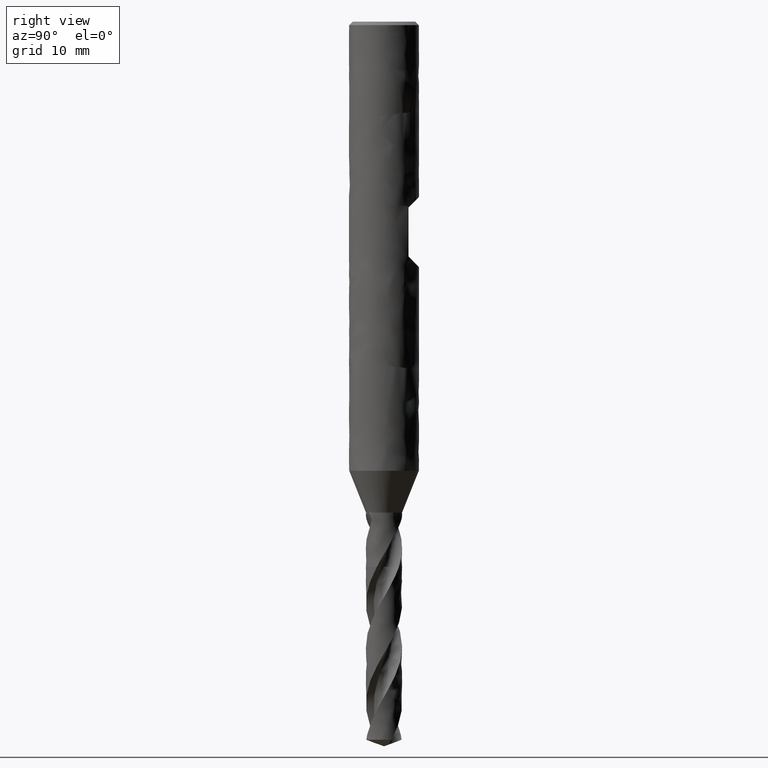
[diagram: clean part render]
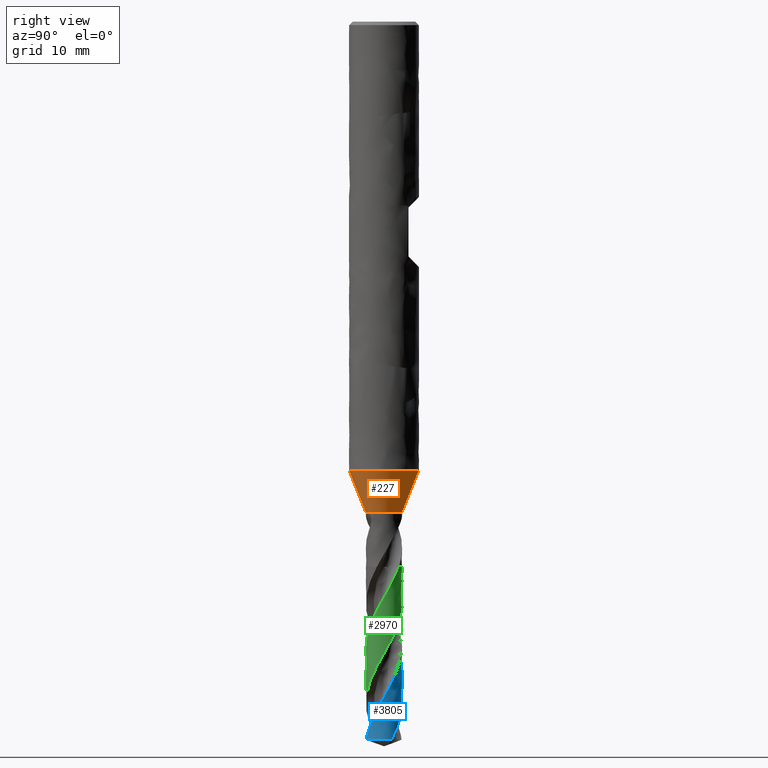
[diagram: same view with three faces highlighted in distinct colors, each labeled with its STEP entity id]
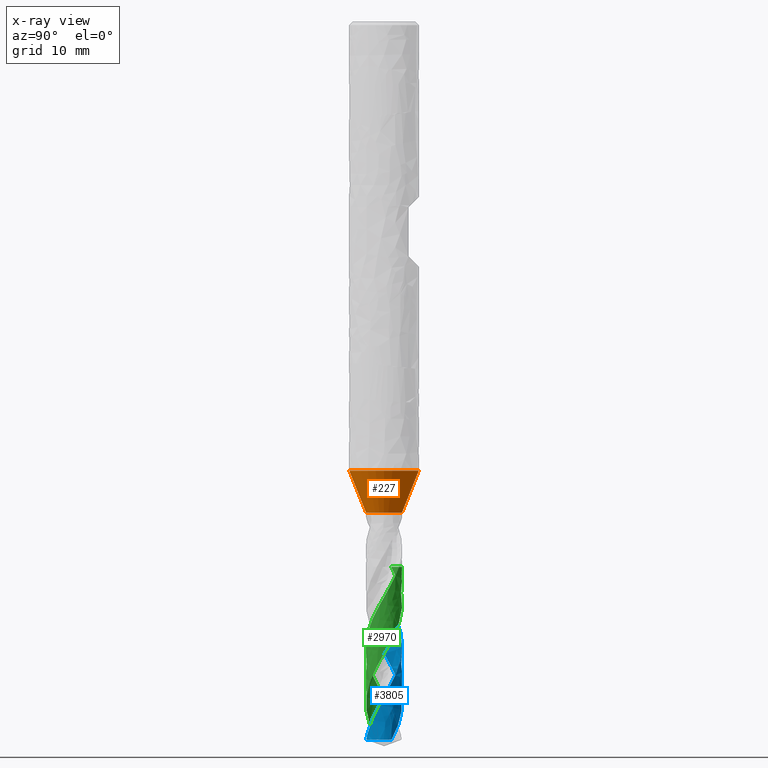
[diagram: x-ray of the same camera — body ghosted, the three highlighted faces saturated]
A machine part, right view with three faces highlighted in distinct colors.
The next image is the same camera in x-ray (body ghosted, the three faces saturated) — at least one of them is partly hidden behind the body in this view.
Their STEP definitions:

[orange] entity #227 — the highlighted face is a freeform B-spline surface patch.
#75 = VERTEX_POINT('', #76);
#76 = CARTESIAN_POINT('', (0.627881422364549, -1.4171326400339, -42.));
#122 = EDGE_CURVE('', #75, #123, #125, .T.);
#123 = VERTEX_POINT('', #124);
#124 = CARTESIAN_POINT('', (-1.55, 2.66666840514336E-15, -42.));
#125 = CIRCLE('', #126, 1.55);
#126 = AXIS2_PLACEMENT_3D('', #127, #128, #129);
#127 = CARTESIAN_POINT('', (1.57474777179495E-31, 2.57175827820944E-15, -42.));
#128 = DIRECTION('', (3.74939945665464E-33, 6.12323399573677E-17, -1.));
#129 = DIRECTION('', (-1., 6.12323399573677E-17, 0.));
#227 = ADVANCED_FACE('', (#228), #339, .T.);
#228 = FACE_OUTER_BOUND('', #229, .T.);
#229 = EDGE_LOOP('', (#230, #247, #256, #271, #279, #294, #301, #309, #316, #317, #318, #333));
#230 = ORIENTED_EDGE('', *, *, #231, .T.);
#231 = EDGE_CURVE('', #232, #234, #236, .T.);
#232 = VERTEX_POINT('', #233);
#233 = CARTESIAN_POINT('', (0.744864500153045, -1.36851492199996, -41.98));
#234 = VERTEX_POINT('', #235);
#235 = CARTESIAN_POINT('', (0.828880409114039, -1.30975465923467, -42.));
#236 = B_SPLINE_CURVE_WITH_KNOTS('', 3, (#237, #238, #239, #240, #241, #242, #243, #244, #245, #246), .UNSPECIFIED., .F., .U., (4, 3, 3, 4), (0., 0.0588161059476675, 0.0977925792782247, 0.105234249417953), .UNSPECIFIED.);
#237 = CARTESIAN_POINT('', (0.744864500154259, -1.3685149219993, -41.98));
#238 = CARTESIAN_POINT('', (0.762076776032858, -1.35912841588972, -41.9800392683816));
#239 = CARTESIAN_POINT('', (0.778913272798681, -1.34869301233412, -41.9818579269681));
#240 = CARTESIAN_POINT('', (0.794493674618662, -1.33751548720997, -41.9859425923275));
#241 = CARTESIAN_POINT('', (0.804818552579066, -1.33010832376581, -41.9886494333855));
#242 = CARTESIAN_POINT('', (0.814679514851356, -1.32231347696265, -41.9923765779626));
#243 = CARTESIAN_POINT('', (0.823760362191451, -1.31434203251164, -41.9971505122571));
#244 = CARTESIAN_POINT('', (0.825494143232161, -1.31282006669296, -41.9980619863145));
#245 = CARTESIAN_POINT('', (0.827201512917607, -1.31129033241339, -41.9990119832707));
#246 = CARTESIAN_POINT('', (0.828880409114055, -1.30975465923468, -42.));
#247 = ORIENTED_EDGE('', *, *, #248, .F.);
#248 = EDGE_CURVE('', #249, #234, #251, .T.);
#249 = VERTEX_POINT('', #250);
#250 = CARTESIAN_POINT('', (-0.627881422364551, 1.41713264003391, -42.));
#251 = CIRCLE('', #252, 1.55);
#252 = AXIS2_PLACEMENT_3D('', #253, #254, #255);
#253 = CARTESIAN_POINT('', (1.57474777179495E-31, 2.57175827820944E-15, -42.));
#254 = DIRECTION('', (3.74939945665464E-33, 6.12323399573677E-17, -1.));
#255 = DIRECTION('', (-1., 6.12323399573677E-17, 0.));
#256 = ORIENTED_EDGE('', *, *, #257, .F.);
#257 = EDGE_CURVE('', #258, #249, #260, .T.);
#258 = VERTEX_POINT('', #259);
#259 = CARTESIAN_POINT('', (-0.743704507682094, 1.36914565352929, -41.98));
#260 = B_SPLINE_CURVE_WITH_KNOTS('', 3, (#261, #262, #263, #264, #265, #266, #267, #268, #269, #270), .UNSPECIFIED., .F., .U., (4, 3, 3, 4), (0., 0.0585774960579021, 0.116854257670078, 0.12744462407822), .UNSPECIFIED.);
#261 = CARTESIAN_POINT('', (-0.743704507676167, 1.36914565353251, -41.98));
#262 = CARTESIAN_POINT('', (-0.726539052094086, 1.37845176594328, -41.9800390192735));
#263 = CARTESIAN_POINT('', (-0.708816172334189, 1.38684246911605, -41.9818041005853));
#264 = CARTESIAN_POINT('', (-0.691023940150775, 1.39430501473745, -41.9848049342738));
#265 = CARTESIAN_POINT('', (-0.673323052552636, 1.40172924795781, -41.987790361806));
#266 = CARTESIAN_POINT('', (-0.655431397703463, 1.40829151745052, -41.992014639284));
#267 = CARTESIAN_POINT('', (-0.637600839859803, 1.41406249322282, -41.997125459555));
#268 = CARTESIAN_POINT('', (-0.634360575033789, 1.41511122596415, -41.9980542252897));
#269 = CARTESIAN_POINT('', (-0.631120424241969, 1.41613444507661, -41.9990129660792));
#270 = CARTESIAN_POINT('', (-0.627881422364559, 1.4171326400339, -42.));
#271 = ORIENTED_EDGE('', *, *, #272, .F.);
#272 = EDGE_CURVE('', #273, #258, #275, .T.);
#273 = VERTEX_POINT('', #274);
#274 = CARTESIAN_POINT('', (-0.744864500151864, 1.36851492200061, -41.98));
#275 = LINE('', #276, #277);
#276 = CARTESIAN_POINT('', (-0.744864500151864, 1.36851492200061, -41.98));
#277 = VECTOR('', #278, 0.00132038054787247);
#278 = DIRECTION('', (0.00115999246977061, 0.000630731528683537, 0.));
#279 = ORIENTED_EDGE('', *, *, #280, .T.);
#280 = EDGE_CURVE('', #273, #281, #283, .T.);
#281 = VERTEX_POINT('', #282);
#282 = CARTESIAN_POINT('', (-0.828880409114053, 1.30975465923467, -42.));
#283 = B_SPLINE_CURVE_WITH_KNOTS('', 3, (#284, #285, #286, #287, #288, #289, #290, #291, #292, #293), .UNSPECIFIED., .F., .U., (4, 3, 3, 4), (0., 0.0588161059476683, 0.0977925792782241, 0.105234249417383), .UNSPECIFIED.);
#284 = CARTESIAN_POINT('', (-0.744864500154759, 1.36851492199903, -41.98));
#285 = CARTESIAN_POINT('', (-0.762076776033349, 1.35912841588944, -41.9800392683816));
#286 = CARTESIAN_POINT('', (-0.778913272799156, 1.34869301233382, -41.9818579269681));
#287 = CARTESIAN_POINT('', (-0.794493674619115, 1.33751548720965, -41.9859425923276));
#288 = CARTESIAN_POINT('', (-0.804818552579504, 1.33010832376548, -41.9886494333856));
#289 = CARTESIAN_POINT('', (-0.814679514851774, 1.32231347696231, -41.9923765779628));
#290 = CARTESIAN_POINT('', (-0.823760362191848, 1.31434203251129, -41.9971505122573));
#291 = CARTESIAN_POINT('', (-0.82549414323242, 1.31282006669273, -41.9980619863147));
#292 = CARTESIAN_POINT('', (-0.827201512917736, 1.31129033241328, -41.9990119832708));
#293 = CARTESIAN_POINT('', (-0.828880409114055, 1.30975465923468, -42.));
#294 = ORIENTED_EDGE('', *, *, #295, .F.);
#295 = EDGE_CURVE('', #123, #281, #296, .T.);
#296 = CIRCLE('', #297, 1.55);
#297 = AXIS2_PLACEMENT_3D('', #298, #299, #300);
#298 = CARTESIAN_POINT('', (1.57474777179495E-31, 2.57175827820944E-15, -42.));
#299 = DIRECTION('', (3.74939945665464E-33, 6.12323399573677E-17, -1.));
#300 = DIRECTION('', (-1., 6.12323399573677E-17, 0.));
#301 = ORIENTED_EDGE('', *, *, #302, .F.);
#302 = EDGE_CURVE('', #303, #123, #305, .T.);
#303 = VERTEX_POINT('', #304);
#304 = CARTESIAN_POINT('', (-3., 2.5360598240143E-15, -38.417));
#305 = LINE('', #306, #307);
#306 = CARTESIAN_POINT('', (-3., 2.5360598240143E-15, -38.417));
#307 = VECTOR('', #308, 3.86527993811574);
#308 = DIRECTION('', (1.45, 1.30608581129065E-16, -3.583));
#309 = ORIENTED_EDGE('', *, *, #310, .T.);
#310 = EDGE_CURVE('', #303, #303, #311, .T.);
#311 = CIRCLE('', #312, 3.);
#312 = AXIS2_PLACEMENT_3D('', #313, #314, #315);
#313 = CARTESIAN_POINT('', (1.44040678926301E-31, 2.35236280414219E-15, -38.417));
#314 = DIRECTION('', (3.74939945665464E-33, 6.12323399573677E-17, -1.));
#315 = DIRECTION('', (-1., 6.12323399573677E-17, 0.));
#316 = ORIENTED_EDGE('', *, *, #302, .T.);
#317 = ORIENTED_EDGE('', *, *, #122, .F.);
#318 = ORIENTED_EDGE('', *, *, #319, .F.);
#319 = EDGE_CURVE('', #320, #75, #322, .T.);
#320 = VERTEX_POINT('', #321);
#321 = CARTESIAN_POINT('', (0.743704507680911, -1.36914565352993, -41.98));
#322 = B_SPLINE_CURVE_WITH_KNOTS('', 3, (#323, #324, #325, #326, #327, #328, #329, #330, #331, #332), .UNSPECIFIED., .F., .U., (4, 3, 3, 4), (0., 0.0585774960579116, 0.116854257670093, 0.127444624079631), .UNSPECIFIED.);
#323 = CARTESIAN_POINT('', (0.743704507677403, -1.36914565353184, -41.98));
#324 = CARTESIAN_POINT('', (0.726539052095343, -1.37845176594265, -41.9800390192735));
#325 = CARTESIAN_POINT('', (0.708816172335457, -1.38684246911546, -41.9818041005852));
#326 = CARTESIAN_POINT('', (0.691023940152047, -1.39430501473691, -41.9848049342736));
#327 = CARTESIAN_POINT('', (0.673323052553914, -1.40172924795732, -41.9877903618058));
#328 = CARTESIAN_POINT('', (0.655431397704741, -1.40829151745007, -41.9920146392837));
#329 = CARTESIAN_POINT('', (0.637600839861079, -1.4140624932224, -41.9971254595546));
#330 = CARTESIAN_POINT('', (0.634360575034638, -1.41511122596387, -41.9980542252894));
#331 = CARTESIAN_POINT('', (0.631120424242391, -1.41613444507647, -41.9990129660791));
#332 = CARTESIAN_POINT('', (0.627881422364553, -1.4171326400339, -42.));
#333 = ORIENTED_EDGE('', *, *, #334, .F.);
#334 = EDGE_CURVE('', #232, #320, #335, .T.);
#335 = LINE('', #336, #337);
#336 = CARTESIAN_POINT('', (0.744864500153045, -1.36851492199996, -41.98));
#337 = VECTOR('', #338, 0.00132038055056203);
#338 = DIRECTION('', (-0.00115999247213361, -0.000630731529968065, 0.));
#339 = (
   BOUNDED_SURFACE ()
   B_SPLINE_SURFACE (2, 1, ((#340, #341), (#342, #343), (#344, #345), (#346, #347), (#348, #349), (#350, #351), (#352, #353), (#354, #355), (#356, #357)), .UNSPECIFIED., .T., .F., .U.)
   B_SPLINE_SURFACE_WITH_KNOTS ((3, 2, 2, 2, 3), (2, 2), (0., 0.25, 0.5, 0.75, 1.), (0., 1.), .UNSPECIFIED.)
   GEOMETRIC_REPRESENTATION_ITEM ()
   RATIONAL_B_SPLINE_SURFACE (((1., 1.), (0.707106781186548, 0.707106781186548), (1., 1.), (0.707106781186548, 0.707106781186548), (1., 1.), (0.707106781186548, 0.707106781186548), (1., 1.), (0.707106781186548, 0.707106781186548), (1., 1.)))
   REPRESENTATION_ITEM ('')
   SURFACE ()
);
#340 = CARTESIAN_POINT('', (-3., 2.5360598240143E-15, -38.417));
#341 = CARTESIAN_POINT('', (-1.55, 2.66666840514336E-15, -42.));
#342 = CARTESIAN_POINT('', (-3., 3., -38.417));
#343 = CARTESIAN_POINT('', (-1.55, 1.55, -42.));
#344 = CARTESIAN_POINT('', (1.23259516440783E-31, 3., -38.417));
#345 = CARTESIAN_POINT('', (1.60237371373018E-31, 1.55, -42.));
#346 = CARTESIAN_POINT('', (3., 3., -38.417));
#347 = CARTESIAN_POINT('', (1.55, 1.55, -42.));
#348 = CARTESIAN_POINT('', (3., 2.5360598240143E-15, -38.417));
#349 = CARTESIAN_POINT('', (1.55, 2.66666840514336E-15, -42.));
#350 = CARTESIAN_POINT('', (3., -3., -38.417));
#351 = CARTESIAN_POINT('', (1.55, -1.55, -42.));
#352 = CARTESIAN_POINT('', (3.67394039744206E-16, -3., -38.417));
#353 = CARTESIAN_POINT('', (1.8982025386784E-16, -1.55, -42.));
#354 = CARTESIAN_POINT('', (-3., -3., -38.417));
#355 = CARTESIAN_POINT('', (-1.55, -1.55, -42.));
#356 = CARTESIAN_POINT('', (-3., 2.5360598240143E-15, -38.417));
#357 = CARTESIAN_POINT('', (-1.55, 2.66666840514336E-15, -42.));

[blue] entity #3805 — the highlighted face is a freeform B-spline surface patch.
#1717 = VERTEX_POINT('', #1718);
#1718 = CARTESIAN_POINT('', (-1.55, 3.40472256025025E-15, -54.0533390626709));
#1815 = EDGE_CURVE('', #1816, #1717, #1818, .T.);
#1816 = VERTEX_POINT('', #1817);
#1817 = CARTESIAN_POINT('', (1.40988378344483, 0.64399356920647, -61.4358461368874));
#1818 = B_SPLINE_CURVE_WITH_KNOTS('', 3, (#1819, #1820, #1821, #1822, #1823, #1824, #1825, #1826, #1827, #1828, #1829, #1830, #1831, #1832, #1833, #1834, #1835, #1836, #1837, #1838, #1839, #1840, #1841, #1842, #1843, #1844, #1845, #1846, #1847, #1848, #1849, #1850, #1851, #1852, #1853, #1854, #1855, #1856, #1857, #1858, #1859, #1860, #1861, #1862, #1863, #1864, #1865, #1866, #1867, #1868, #1869, #1870, #1871, #1872, #1873, #1874, #1875, #1876, #1877, #1878, #1879, #1880, #1881, #1882, #1883, #1884, #1885, #1886, #1887, #1888, #1889, #1890, #1891, #1892, #1893, #1894, #1895, #1896, #1897), .UNSPECIFIED., .F., .U., (4, 3, 3, 3, 3, 3, 3, 3, 3, 3, 3, 3, 3, 3, 3, 3, 3, 3, 3, 3, 3, 3, 3, 3, 3, 3, 4), (0., 0.443883191921883, 0.887488298293039, 1.33082201933787, 1.77388854042719, 2.2166886423635, 2.65922085424135, 3.10148120019066, 3.54346219964249, 3.58237400413385, 4.02718235987525, 4.32328315081376, 4.6192936692098, 4.91521664398712, 5.21105428992274, 5.50680836556291, 5.80248024939906, 6.09807093073575, 6.39358102150499, 6.68901076627358, 6.98436004553766, 7.27962837249952, 7.57481488327345, 7.86991832021399, 8.16493700882357, 8.45986885785098, 8.49503709151371), .UNSPECIFIED.);
#1819 = CARTESIAN_POINT('', (1.40988378344484, 0.643993569206449, -61.4358461368874));
#1820 = CARTESIAN_POINT('', (1.37951572487496, 0.710477825198545, -61.3071989403529));
#1821 = CARTESIAN_POINT('', (1.3444118649723, 0.774855685119166, -61.1784774714753));
#1822 = CARTESIAN_POINT('', (1.30496228584475, 0.836405064859644, -61.049838904115));
#1823 = CARTESIAN_POINT('', (1.2655374212325, 0.897915884921643, -60.9212809267105));
#1824 = CARTESIAN_POINT('', (1.22172493855949, 0.956675644930227, -60.7926486928726));
#1825 = CARTESIAN_POINT('', (1.17401212246315, 1.01202546228323, -60.6640993273048));
#1826 = CARTESIAN_POINT('', (1.12632849574713, 1.0673414181499, -60.535628604681));
#1827 = CARTESIAN_POINT('', (1.0746921430487, 1.11931788756255, -60.4070836835567));
#1828 = CARTESIAN_POINT('', (1.01967796286389, 1.16737177113795, -60.2786213386706));
#1829 = CARTESIAN_POINT('', (0.964696940063226, 1.2153966923427, -60.1502364188285));
#1830 = CARTESIAN_POINT('', (0.906275759988446, 1.25956173773502, -60.0217775674116));
#1831 = CARTESIAN_POINT('', (0.84506508490959, 1.2993710025496, -59.8934012874409));
#1832 = CARTESIAN_POINT('', (0.783891216259191, 1.33915632976089, -59.7651022010701));
#1833 = CARTESIAN_POINT('', (0.719857764971582, 1.3746388999662, -59.6367290786596));
#1834 = CARTESIAN_POINT('', (0.653677525824714, 1.40542011236205, -59.5084385375412));
#1835 = CARTESIAN_POINT('', (0.587537325124215, 1.43618270240268, -59.3802256110404));
#1836 = CARTESIAN_POINT('', (0.519173694171452, 1.46228645691061, -59.2519387272732));
#1837 = CARTESIAN_POINT('', (0.449347876115801, 1.48343738871272, -59.1237341609218));
#1838 = CARTESIAN_POINT('', (0.379564954962007, 1.50457532661843, -58.9956083559633));
#1839 = CARTESIAN_POINT('', (0.30823750585711, 1.52079200182639, -58.867408836408));
#1840 = CARTESIAN_POINT('', (0.236159730889943, 1.53190358100828, -58.7392916339574));
#1841 = CARTESIAN_POINT('', (0.164127482667755, 1.54300814174333, -58.6112553546375));
#1842 = CARTESIAN_POINT('', (0.0912595097364699, 1.54902738212183, -58.4831452706168));
#1843 = CARTESIAN_POINT('', (0.0183665571696496, 1.54989117991482, -58.3551174759993));
#1844 = CARTESIAN_POINT('', (0.0119490950556767, 1.54996722827636, -58.343845967677));
#1845 = CARTESIAN_POINT('', (0.00553107625956117, 1.55000341875168, -58.3325744368982));
#1846 = CARTESIAN_POINT('', (-0.000886940022476066, 1.54999974623785, -58.3213029881575));
#1847 = CARTESIAN_POINT('', (-0.0742525242417464, 1.54995776502265, -58.1924568797158));
#1848 = CARTESIAN_POINT('', (-0.147667446283517, 1.54469383469621, -58.063535554002));
#1849 = CARTESIAN_POINT('', (-0.220303110440802, 1.53426416875691, -57.9346980100498));
#1850 = CARTESIAN_POINT('', (-0.268655344228019, 1.52732133080437, -57.8489332123017));
#1851 = CARTESIAN_POINT('', (-0.316695670329391, 1.51808782439661, -57.7631469467067));
#1852 = CARTESIAN_POINT('', (-0.364182808827479, 1.50660906732787, -57.677385930754));
#1853 = CARTESIAN_POINT('', (-0.411655469874451, 1.49513380979921, -57.5916510608475));
#1854 = CARTESIAN_POINT('', (-0.458601590706964, 1.48140830514994, -57.5058947784447));
#1855 = CARTESIAN_POINT('', (-0.504785234425529, 1.4655005517249, -57.4201637022006));
#1856 = CARTESIAN_POINT('', (-0.550955219564261, 1.44959750293775, -57.3344579804902));
#1857 = CARTESIAN_POINT('', (-0.596388800677846, 1.43150467226813, -57.2487308417183));
#1858 = CARTESIAN_POINT('', (-0.640857691518988, 1.41131194964861, -57.1630289343713));
#1859 = CARTESIAN_POINT('', (-0.685313759837816, 1.39112504956326, -57.0773517390106));
#1860 = CARTESIAN_POINT('', (-0.728830166062569, 1.36882836727626, -56.9916530428297));
#1861 = CARTESIAN_POINT('', (-0.771188537468885, 1.34453272168312, -56.9059796821666));
#1862 = CARTESIAN_POINT('', (-0.813534943185028, 1.32024393929453, -56.8203305231159));
#1863 = CARTESIAN_POINT('', (-0.854746922267829, 1.29394417017991, -56.7346597486991));
#1864 = CARTESIAN_POINT('', (-0.89461795601716, 1.26576408258873, -56.6490144055438));
#1865 = CARTESIAN_POINT('', (-0.934477909370777, 1.23759182641029, -56.563392863735));
#1866 = CARTESIAN_POINT('', (-0.973019025211564, 1.20752520399204, -56.4777496498771));
#1867 = CARTESIAN_POINT('', (-1.01004826382415, 1.17571361510609, -56.392131902759));
#1868 = CARTESIAN_POINT('', (-1.04706733283019, 1.14391076286595, -56.3065376694597));
#1869 = CARTESIAN_POINT('', (-1.08259512568359, 1.11034691576882, -56.2209217654872));
#1870 = CARTESIAN_POINT('', (-1.11645362355366, 1.07518896313807, -56.1353313095731));
#1871 = CARTESIAN_POINT('', (-1.15030289015992, 1.04004059605765, -56.0497641892506));
#1872 = CARTESIAN_POINT('', (-1.1825019062235, 1.00328015359475, -55.964175443978));
#1873 = CARTESIAN_POINT('', (-1.21288914972348, 0.965090622938104, -55.8786120883917));
#1874 = CARTESIAN_POINT('', (-1.2432681312603, 0.926911475602201, -55.7930719965572));
#1875 = CARTESIAN_POINT('', (-1.27185272537037, 0.887283391933954, -55.7075103535609));
#1876 = CARTESIAN_POINT('', (-1.29849930068067, 0.846403902479083, -55.621974019248));
#1877 = CARTESIAN_POINT('', (-1.32513861832594, 0.805535547274578, -55.5364609822651));
#1878 = CARTESIAN_POINT('', (-1.34985549459513, 0.763394172014347, -55.4509264770513));
#1879 = CARTESIAN_POINT('', (-1.37252547844652, 0.720190121436804, -55.3654171966098));
#1880 = CARTESIAN_POINT('', (-1.39518924868063, 0.676997912660154, -55.2799313534122));
#1881 = CARTESIAN_POINT('', (-1.41581971631606, 0.632719833384676, -55.1944241124146));
#1882 = CARTESIAN_POINT('', (-1.43431276810439, 0.587577129620221, -55.1089420318374));
#1883 = CARTESIAN_POINT('', (-1.45280069563501, 0.542446934491464, -55.023483637573));
#1884 = CARTESIAN_POINT('', (-1.46916261963538, 0.496427618605809, -54.9380038789899));
#1885 = CARTESIAN_POINT('', (-1.48331575606311, 0.449749227698014, -54.8525492613353));
#1886 = CARTESIAN_POINT('', (-1.49746490939793, 0.403083973409705, -54.7671186930271));
#1887 = CARTESIAN_POINT('', (-1.50941433846899, 0.355734238544268, -54.6816667295978));
#1888 = CARTESIAN_POINT('', (-1.51910337472486, 0.30793657934652, -54.5962399606609));
#1889 = CARTESIAN_POINT('', (-1.52878962846603, 0.260152646765725, -54.5108377247358));
#1890 = CARTESIAN_POINT('', (-1.53622209164714, 0.211894932076102, -54.4254140017257));
#1891 = CARTESIAN_POINT('', (-1.54136273046968, 0.163404201657309, -54.3400155677741));
#1892 = CARTESIAN_POINT('', (-1.54650185613069, 0.114927744621631, -54.2546422710921));
#1893 = CARTESIAN_POINT('', (-1.54935328749834, 0.0661922488438398, -54.1692474076644));
#1894 = CARTESIAN_POINT('', (-1.54990187597179, 0.017440609495147, -54.0838778932161));
#1895 = CARTESIAN_POINT('', (-1.54996729070296, 0.0116273714548686, -54.0736982702229));
#1896 = CARTESIAN_POINT('', (-1.55, 0.00581369664337269, -54.06351863394));
#1897 = CARTESIAN_POINT('', (-1.55, 3.08466607893253E-15, -54.0533390626709));
#2121 = VERTEX_POINT('', #2122);
#2122 = CARTESIAN_POINT('', (-1.55, 3.11034679085834E-15, -49.2458179129506));
#2141 = EDGE_CURVE('', #2121, #1717, #2142, .T.);
#2142 = LINE('', #2143, #2144);
#2143 = CARTESIAN_POINT('', (-1.55, 3.11034679085834E-15, -49.2458179129506));
#2144 = VECTOR('', #2145, 4.80752114972036);
#2145 = DIRECTION('', (2.22044604925031E-16, 2.94375769391912E-16, -4.80752114972036));
#2225 = VERTEX_POINT('', #2226);
#2226 = CARTESIAN_POINT('', (0.349973993716162, -1.50997291489694, -61.4358461368874));
#2317 = EDGE_CURVE('', #2318, #2225, #2320, .T.);
#2318 = VERTEX_POINT('', #2319);
#2319 = CARTESIAN_POINT('', (0.598909748504045, -1.42961782065936, -60.9732158103966));
#2320 = B_SPLINE_CURVE_WITH_KNOTS('', 3, (#2321, #2322, #2323, #2324, #2325, #2326, #2327), .UNSPECIFIED., .F., .U., (4, 3, 4), (0., 0.4424696598773, 0.531526986611299), .UNSPECIFIED.);
#2321 = CARTESIAN_POINT('', (0.598909748504046, -1.42961782065936, -60.9732158103966));
#2322 = CARTESIAN_POINT('', (0.531883535008349, -1.45769711016442, -61.1015602955224));
#2323 = CARTESIAN_POINT('', (0.46284703800062, -1.48106413517583, -61.2299871942302));
#2324 = CARTESIAN_POINT('', (0.392563482824736, -1.49946454174565, -61.3583418340637));
#2325 = CARTESIAN_POINT('', (0.378417280034105, -1.50316805221998, -61.3841761954539));
#2326 = CARTESIAN_POINT('', (0.36421867644714, -1.5066713533554, -61.410011393286));
#2327 = CARTESIAN_POINT('', (0.349973993716162, -1.50997291489694, -61.4358461368874));
#3625 = EDGE_CURVE('', #1816, #2225, #3626, .T.);
#3626 = CIRCLE('', #3627, 1.55000000000001);
#3627 = AXIS2_PLACEMENT_3D('', #3628, #3629, #3630);
#3628 = CARTESIAN_POINT('', (2.30347528124764E-31, 3.76186061622242E-15, -61.4358461368874));
#3629 = DIRECTION('', (3.74939945665464E-33, 6.12323399573677E-17, -1.));
#3630 = DIRECTION('', (-1., 6.12323399573677E-17, 0.));
#3805 = ADVANCED_FACE('', (#3806), #3945, .T.);
#3806 = FACE_OUTER_BOUND('', #3807, .T.);
#3807 = EDGE_LOOP('', (#3808, #3809, #3810, #3811, #3812));
#3808 = ORIENTED_EDGE('', *, *, #2317, .T.);
#3809 = ORIENTED_EDGE('', *, *, #3625, .F.);
#3810 = ORIENTED_EDGE('', *, *, #1815, .T.);
#3811 = ORIENTED_EDGE('', *, *, #2141, .F.);
#3812 = ORIENTED_EDGE('', *, *, #3813, .F.);
#3813 = EDGE_CURVE('', #2318, #2121, #3814, .T.);
#3814 = B_SPLINE_CURVE_WITH_KNOTS('', 3, (#3815, #3816, #3817, #3818, #3819, #3820, #3821, #3822, #3823, #3824, #3825, #3826, #3827, #3828, #3829, #3830, #3831, #3832, #3833, #3834, #3835, #3836, #3837, #3838, #3839, #3840, #3841, #3842, #3843, #3844, #3845, #3846, #3847, #3848, #3849, #3850, #3851, #3852, #3853, #3854, #3855, #3856, #3857, #3858, #3859, #3860, #3861, #3862, #3863, #3864, #3865, #3866, #3867, #3868, #3869, #3870, #3871, #3872, #3873, #3874, #3875, #3876, #3877, #3878, #3879, #3880, #3881, #3882, #3883, #3884, #3885, #3886, #3887, #3888, #3889, #3890, #3891, #3892, #3893, #3894, #3895, #3896, #3897, #3898, #3899, #3900, #3901, #3902, #3903, #3904, #3905, #3906, #3907, #3908, #3909, #3910, #3911, #3912, #3913, #3914, #3915, #3916, #3917, #3918, #3919, #3920, #3921, #3922, #3923, #3924, #3925, #3926, #3927, #3928, #3929, #3930, #3931, #3932, #3933, #3934, #3935, #3936, #3937, #3938, #3939, #3940, #3941, #3942, #3943, #3944), .UNSPECIFIED., .F., .U., (4, 3, 3, 3, 3, 3, 3, 3, 3, 3, 3, 3, 3, 3, 3, 3, 3, 3, 3, 3, 3, 3, 3, 3, 3, 3, 3, 3, 3, 3, 3, 3, 3, 3, 3, 3, 3, 3, 3, 3, 3, 3, 3, 4), (0., 0.443943451635079, 0.887609980412128, 1.33100635973686, 1.77413666877157, 2.21700268515898, 2.65960288900834, 3.1019334124649, 3.54398788831018, 3.67522250283479, 3.71414592411415, 4.15893084665537, 4.4550225241033, 4.75102466263535, 5.04693987242472, 5.34277026029543, 5.63851747818144, 5.93418279918796, 6.22976711830564, 6.52527095754174, 6.82069447453073, 7.11603746449581, 7.41129935571057, 7.70647919836107, 8.00157564645583, 8.29658693263487, 8.59151085556498, 8.61745800567544, 9.06226859435484, 9.35836955450918, 9.65437941490937, 9.9503008555929, 10.2461360519519, 10.5418867387519, 10.8375542289702, 11.133139437474, 11.4286428973414, 11.7240647688515, 12.0194048415713, 12.3146625296969, 12.6098368605591, 12.9049264577671, 13.199929536006, 13.4993605211161), .UNSPECIFIED.);
#3815 = CARTESIAN_POINT('', (0.598909748504045, -1.42961782065936, -60.9732158103966));
#3816 = CARTESIAN_POINT('', (0.666159215004328, -1.40144500378013, -60.8444438314526));
#3817 = CARTESIAN_POINT('', (0.731468415625656, -1.36849334773499, -60.715601521493));
#3818 = CARTESIAN_POINT('', (0.794107640538774, -1.33112473316291, -60.5868446379338));
#3819 = CARTESIAN_POINT('', (0.856707792382734, -1.29377942836938, -60.4581680702888));
#3820 = CARTESIAN_POINT('', (0.916716341443669, -1.25197786079045, -60.3294214885135));
#3821 = CARTESIAN_POINT('', (0.973461782915844, -1.20618081447282, -60.2007603238887));
#3822 = CARTESIAN_POINT('', (1.03017267197322, -1.1604116540699, -60.0721775013089));
#3823 = CARTESIAN_POINT('', (1.08369212041111, -1.11059726786203, -59.9435244877426));
#3824 = CARTESIAN_POINT('', (1.13342104376696, -1.05728744319897, -59.8149570734398));
#3825 = CARTESIAN_POINT('', (1.18312012612798, -1.00400960833368, -59.6864668089984));
#3826 = CARTESIAN_POINT('', (1.22909214884366, -0.947177316558407, -59.557906284933));
#3827 = CARTESIAN_POINT('', (1.27082149974476, -0.887419131970043, -59.4294310142395));
#3828 = CARTESIAN_POINT('', (1.31252596234462, -0.827696588475238, -59.3010323690187));
#3829 = CARTESIAN_POINT('', (1.35004284992637, -0.764979924185665, -59.172563768298));
#3830 = CARTESIAN_POINT('', (1.38295000589553, -0.699963771343658, -59.0441804537575));
#3831 = CARTESIAN_POINT('', (1.41583741066607, -0.634986641835937, -58.9158741961449));
#3832 = CARTESIAN_POINT('', (1.4441598735768, -0.567635258888278, -58.7874977710911));
#3833 = CARTESIAN_POINT('', (1.46759757839651, -0.498655540313513, -58.6592067857792));
#3834 = CARTESIAN_POINT('', (1.49102100240617, -0.429717851718485, -58.5309939693498));
#3835 = CARTESIAN_POINT('', (1.50959339702542, -0.359071943080549, -58.4027109578836));
#3836 = CARTESIAN_POINT('', (1.52310310381476, -0.287501191562491, -58.2745130509291));
#3837 = CARTESIAN_POINT('', (1.53660437952803, -0.215975105591906, -58.1463951491383));
#3838 = CARTESIAN_POINT('', (1.54506547095601, -0.143439407830197, -58.0182073518208));
#3839 = CARTESIAN_POINT('', (1.54838678220716, -0.0706991703356716, -57.8901047018863));
#3840 = CARTESIAN_POINT('', (1.5493727941708, -0.0491044630096815, -57.8520743169398));
#3841 = CARTESIAN_POINT('', (1.54990705718277, -0.0274867225744815, -57.8140426091803));
#3842 = CARTESIAN_POINT('', (1.54998889502712, -0.00586730710110105, -57.7760135681665));
#3843 = CARTESIAN_POINT('', (1.55001316765445, 0.000544885439199343, -57.7647343763954));
#3844 = CARTESIAN_POINT('', (1.54999764981344, 0.00695735513754477, -57.7534551863668));
#3845 = CARTESIAN_POINT('', (1.54994233934976, 0.0133695434106017, -57.7421761016678));
#3846 = CARTESIAN_POINT('', (1.54931029675183, 0.0866427699309964, -57.6132879759769));
#3847 = CARTESIAN_POINT('', (1.54346880770292, 0.15992917524417, -57.4843283540238));
#3848 = CARTESIAN_POINT('', (1.53247795859179, 0.232403327063861, -57.3554554992385));
#3849 = CARTESIAN_POINT('', (1.52516139099929, 0.280649101811138, -57.2696653165749));
#3850 = CARTESIAN_POINT('', (1.51556103501078, 0.328568245784013, -57.1838552871003));
#3851 = CARTESIAN_POINT('', (1.50372336664002, 0.375920253006991, -57.0980718422915));
#3852 = CARTESIAN_POINT('', (1.49188927801186, 0.423257940856224, -57.012314338626));
#3853 = CARTESIAN_POINT('', (1.47781262278095, 0.47005522271703, -56.9265370605132));
#3854 = CARTESIAN_POINT('', (1.46156240906116, 0.516076859023309, -56.8407863093488));
#3855 = CARTESIAN_POINT('', (1.44531696764015, 0.562084979876625, -56.7550607411274));
#3856 = CARTESIAN_POINT('', (1.42689015814277, 0.607343642838365, -56.6693153852841));
#3857 = CARTESIAN_POINT('', (1.40637281860803, 0.651625271978094, -56.5835965968101));
#3858 = CARTESIAN_POINT('', (1.38586136021778, 0.695894208114487, -56.4979023789965));
#3859 = CARTESIAN_POINT('', (1.36324923376615, 0.739211169461621, -56.4121882397497));
#3860 = CARTESIAN_POINT('', (1.3386480762498, 0.781358642335716, -56.326500835904));
#3861 = CARTESIAN_POINT('', (1.31405383512195, 0.823494265836598, -56.2408375222815));
#3862 = CARTESIAN_POINT('', (1.28745840601071, 0.864483836325522, -56.1551540883161));
#3863 = CARTESIAN_POINT('', (1.25899308618363, 0.90412189938184, -56.0694975632317));
#3864 = CARTESIAN_POINT('', (1.23053564883431, 0.943748986058745, -55.983864757735));
#3865 = CARTESIAN_POINT('', (1.20019427120154, 0.982046332534917, -55.8982117161437));
#3866 = CARTESIAN_POINT('', (1.16811883347188, 1.01882206046409, -55.8125856614294));
#3867 = CARTESIAN_POINT('', (1.13605218328292, 1.05558771313853, -55.7269830652395));
#3868 = CARTESIAN_POINT('', (1.10223551255352, 1.0908519646156, -55.6413602171943));
#3869 = CARTESIAN_POINT('', (1.06683612935722, 1.12443793652567, -55.5557643416772));
#3870 = CARTESIAN_POINT('', (1.0314463844874, 1.15801476385374, -55.470191771679));
#3871 = CARTESIAN_POINT('', (0.994456015890704, 1.18993202171073, -55.3845990084079));
#3872 = CARTESIAN_POINT('', (0.956048451594187, 1.22002924481521, -55.2990331374214));
#3873 = CARTESIAN_POINT('', (0.917651327033, 1.25011828705612, -55.2134905244848));
#3874 = CARTESIAN_POINT('', (0.877817139004551, 1.27840443680636, -55.1279278227838));
#3875 = CARTESIAN_POINT('', (0.836743945680006, 1.30474502082509, -55.0423918964765));
#3876 = CARTESIAN_POINT('', (0.79568194815346, 1.33107842488448, -54.9568792856914));
#3877 = CARTESIAN_POINT('', (0.753359189244461, 1.35548168963844, -54.8713467052928));
#3878 = CARTESIAN_POINT('', (0.709986660011083, 1.37783124605531, -54.7858407788937));
#3879 = CARTESIAN_POINT('', (0.666626040516684, 1.40017466546823, -54.7003583317171));
#3880 = CARTESIAN_POINT('', (0.622192184687747, 1.42047787778642, -54.6148560144625));
#3881 = CARTESIAN_POINT('', (0.576907091615672, 1.4386376220729, -54.5293802604605));
#3882 = CARTESIAN_POINT('', (0.531634582547764, 1.45679232005646, -54.4439282588056));
#3883 = CARTESIAN_POINT('', (0.485485979798951, 1.4728148912699, -54.3584564296424));
#3884 = CARTESIAN_POINT('', (0.438692125312463, 1.48662342884434, -54.2730111419118));
#3885 = CARTESIAN_POINT('', (0.391911491080688, 1.50042806521453, -54.1875899942841));
#3886 = CARTESIAN_POINT('', (0.344459842223124, 1.51202763385815, -54.1021489641779));
#3887 = CARTESIAN_POINT('', (0.296574454618488, 1.52136241338739, -54.0167345641533));
#3888 = CARTESIAN_POINT('', (0.248702886263016, 1.5306944989916, -53.9313448138797));
#3889 = CARTESIAN_POINT('', (0.200371510206767, 1.53776824901534, -53.8459350202514));
#3890 = CARTESIAN_POINT('', (0.151821571660262, 1.54254666392267, -53.7605520327864));
#3891 = CARTESIAN_POINT('', (0.103286010463253, 1.54732366377278, -53.6751943302361));
#3892 = CARTESIAN_POINT('', (0.0545059061167567, 1.54980927051079, -53.5898164233154));
#3893 = CARTESIAN_POINT('', (0.00572439010045475, 1.5499894294345, -53.5044654476276));
#3894 = CARTESIAN_POINT('', (0.00143263476872248, 1.55000527965985, -53.496956343055));
#3895 = CARTESIAN_POINT('', (-0.00285924018950865, 1.55000330480844, -53.48944724807));
#3896 = CARTESIAN_POINT('', (-0.0071510672443175, 1.54998350385973, -53.481938193869));
#3897 = CARTESIAN_POINT('', (-0.0807256259389262, 1.5496440572686, -53.3532108844978));
#3898 = CARTESIAN_POINT('', (-0.154334608736903, 1.54405247409191, -53.2244107201907));
#3899 = CARTESIAN_POINT('', (-0.227141752829678, 1.53326665134329, -53.0956984951081));
#3900 = CARTESIAN_POINT('', (-0.27560792207257, 1.52608675825351, -53.0100175009939));
#3901 = CARTESIAN_POINT('', (-0.3237528582056, 1.51660336446863, -52.924316352333));
#3902 = CARTESIAN_POINT('', (-0.371332659896862, 1.50486280294715, -52.8386421154561));
#3903 = CARTESIAN_POINT('', (-0.418897822972181, 1.49312585357968, -52.7529942375006));
#3904 = CARTESIAN_POINT('', (-0.465925039116233, 1.47912650619968, -52.6673261606903));
#3905 = CARTESIAN_POINT('', (-0.512176127038821, 1.46293390653561, -52.5816850706738));
#3906 = CARTESIAN_POINT('', (-0.558413399515923, 1.44674614368702, -52.4960695621054));
#3907 = CARTESIAN_POINT('', (-0.603900747676632, 1.42835744172004, -52.4104337105));
#3908 = CARTESIAN_POINT('', (-0.648408131785575, 1.40785897540711, -52.3248250077989));
#3909 = CARTESIAN_POINT('', (-0.692902544515124, 1.38736648323507, -52.2392412551815));
#3910 = CARTESIAN_POINT('', (-0.736441842728914, 1.36475428811219, -52.153637005307));
#3911 = CARTESIAN_POINT('', (-0.778806109231876, 1.34013471122239, -52.0680600278594));
#3912 = CARTESIAN_POINT('', (-0.82115827377562, 1.31552216726718, -51.9825074967005));
#3913 = CARTESIAN_POINT('', (-0.862358913006546, 1.28889012056348, -51.8969344054016));
#3914 = CARTESIAN_POINT('', (-0.902199897051573, 1.26037111429933, -51.8113886222138));
#3915 = CARTESIAN_POINT('', (-0.942029673570018, 1.23186013061616, -51.7258669036083));
#3916 = CARTESIAN_POINT('', (-0.980522010708509, 1.20144788668027, -51.6403246388134));
#3917 = CARTESIAN_POINT('', (-1.01748221136057, 1.16928608542342, -51.5548096474434));
#3918 = CARTESIAN_POINT('', (-1.0544321263073, 1.13713323451869, -51.4693184541586));
#3919 = CARTESIAN_POINT('', (-1.08987080042995, 1.1032143437756, -51.3838067837305));
#3920 = CARTESIAN_POINT('', (-1.12361859452415, 1.06769904656677, -51.2983223043025));
#3921 = CARTESIAN_POINT('', (-1.15735705514675, 1.03219357165971, -51.2128614669222));
#3922 = CARTESIAN_POINT('', (-1.18942409701986, 0.995073055876246, -51.1273802517122));
#3923 = CARTESIAN_POINT('', (-1.21965672383185, 0.956523641114933, -51.0419261230998));
#3924 = CARTESIAN_POINT('', (-1.24988100343071, 0.917984869827731, -50.9564955883296));
#3925 = CARTESIAN_POINT('', (-1.27828870639417, 0.877996511388454, -50.8710447772559));
#3926 = CARTESIAN_POINT('', (-1.30473499566227, 0.836759577832361, -50.7856209554287));
#3927 = CARTESIAN_POINT('', (-1.33117396226851, 0.795534062290997, -50.7002207864382));
#3928 = CARTESIAN_POINT('', (-1.35566748834495, 0.753037430761836, -50.6148004134571));
#3929 = CARTESIAN_POINT('', (-1.37809030660211, 0.709483690333554, -50.5294069718671));
#3930 = CARTESIAN_POINT('', (-1.40050687005351, 0.665942099144627, -50.4440373506277));
#3931 = CARTESIAN_POINT('', (-1.42086656738097, 0.621319340734462, -50.358647533542));
#3932 = CARTESIAN_POINT('', (-1.43906496009759, 0.57584029089614, -50.2732846655071));
#3933 = CARTESIAN_POINT('', (-1.45725821503702, 0.530374080720557, -50.1879458971498));
#3934 = CARTESIAN_POINT('', (-1.47330162704676, 0.48402649206196, -50.102586842047));
#3935 = CARTESIAN_POINT('', (-1.48711263504006, 0.437030903603264, -50.0172548615156));
#3936 = CARTESIAN_POINT('', (-1.50091967840279, 0.390048805843185, -49.9319473766459));
#3937 = CARTESIAN_POINT('', (-1.51250324422256, 0.342393113583212, -49.8466194502074));
#3938 = CARTESIAN_POINT('', (-1.52180336428181, 0.294303449624219, -49.7613187414276));
#3939 = CARTESIAN_POINT('', (-1.53110075758686, 0.246227885342719, -49.6760430424395));
#3940 = CARTESIAN_POINT('', (-1.53812111231011, 0.197692428894991, -49.5907468050471));
#3941 = CARTESIAN_POINT('', (-1.54282746333671, 0.148940989570979, -49.5054778560386));
#3942 = CARTESIAN_POINT('', (-1.54760445526703, 0.0994578059056767, -49.4189290459267));
#3943 = CARTESIAN_POINT('', (-1.55, 0.0497253075309384, -49.3323597839743));
#3944 = CARTESIAN_POINT('', (-1.55, 2.93687444326065E-15, -49.2458179129506));
#3945 = (
   BOUNDED_SURFACE ()
   B_SPLINE_SURFACE (2, 1, ((#3946, #3947), (#3948, #3949), (#3950, #3951), (#3952, #3953), (#3954, #3955), (#3956, #3957), (#3958, #3959)), .UNSPECIFIED., .F., .F., .U.)
   B_SPLINE_SURFACE_WITH_KNOTS ((3, 2, 2, 3), (2, 2), (0., 2.43473430653209, 4.86946861306418, 6.9282072314539), (0.372806918819896, 1.), .UNSPECIFIED.)
   GEOMETRIC_REPRESENTATION_ITEM ()
   RATIONAL_B_SPLINE_SURFACE (((1., 1.), (0.707106781186547, 0.707106781186548), (1., 1.), (0.707106781186547, 0.707106781186548), (1., 1.), (0.752338241171542, 0.752338241171542), (0.923507256469482, 0.923507256469482)))
   REPRESENTATION_ITEM ('')
   SURFACE ()
);
#3946 = CARTESIAN_POINT('', (-1.55, 3.11034679085833E-15, -49.2458179129506));
#3947 = CARTESIAN_POINT('', (-1.55, 3.85677074315634E-15, -61.4358461368874));
#3948 = CARTESIAN_POINT('', (-1.55, 1.55, -49.2458179129506));
#3949 = CARTESIAN_POINT('', (-1.55, 1.55, -61.4358461368874));
#3950 = CARTESIAN_POINT('', (1.84889274661175E-31, 1.55, -49.2458179129506));
#3951 = CARTESIAN_POINT('', (2.34193081237488E-31, 1.55, -61.4358461368874));
#3952 = CARTESIAN_POINT('', (1.55, 1.55, -49.2458179129506));
#3953 = CARTESIAN_POINT('', (1.55, 1.55, -61.4358461368874));
#3954 = CARTESIAN_POINT('', (1.55, 3.11034679085833E-15, -49.2458179129506));
#3955 = CARTESIAN_POINT('', (1.55, 3.85677074315634E-15, -61.4358461368874));
#3956 = CARTESIAN_POINT('', (1.55, -1.23183687031029, -49.2458179129506));
#3957 = CARTESIAN_POINT('', (1.55, -1.23183687031028, -61.4358461368874));
#3958 = CARTESIAN_POINT('', (0.349973993716162, -1.50997291489694, -49.2458179129506));
#3959 = CARTESIAN_POINT('', (0.349973993716162, -1.50997291489694, -61.4358461368874));

[green] entity #2970 — the highlighted face is a freeform B-spline surface patch.
#1675 = VERTEX_POINT('', #1676);
#1676 = CARTESIAN_POINT('', (0.884158068900923, 1.27309249828809, -46.65));
#1683 = EDGE_CURVE('', #1684, #1675, #1686, .T.);
#1684 = VERTEX_POINT('', #1685);
#1685 = CARTESIAN_POINT('', (-1.42358137269787, 0.613119951810131, -46.65));
#1686 = CIRCLE('', #1687, 1.55);
#1687 = AXIS2_PLACEMENT_3D('', #1688, #1689, #1690);
#1688 = CARTESIAN_POINT('', (1.74909484652939E-31, 2.8564886590112E-15, -46.65));
#1689 = DIRECTION('', (3.74939945665464E-33, 6.12323399573677E-17, -1.));
#1690 = DIRECTION('', (-1., 6.12323399573677E-17, 0.));
#2670 = EDGE_CURVE('', #2671, #1684, #2673, .T.);
#2671 = VERTEX_POINT('', #2672);
#2672 = CARTESIAN_POINT('', (-1.40988378344483, -0.643993569206461, -61.4358461368874));
#2673 = B_SPLINE_CURVE_WITH_KNOTS('', 3, (#2674, #2675, #2676, #2677, #2678, #2679, #2680, #2681, #2682, #2683, #2684, #2685, #2686, #2687, #2688, #2689, #2690, #2691, #2692, #2693, #2694, #2695, #2696, #2697, #2698, #2699, #2700, #2701, #2702, #2703, #2704, #2705, #2706, #2707, #2708, #2709, #2710, #2711, #2712, #2713, #2714, #2715, #2716, #2717, #2718, #2719, #2720, #2721, #2722, #2723, #2724, #2725, #2726, #2727, #2728, #2729, #2730, #2731, #2732, #2733, #2734, #2735, #2736, #2737, #2738, #2739, #2740, #2741, #2742, #2743, #2744, #2745, #2746, #2747, #2748, #2749, #2750, #2751, #2752, #2753, #2754, #2755, #2756, #2757, #2758, #2759, #2760, #2761, #2762, #2763, #2764, #2765, #2766, #2767, #2768, #2769, #2770, #2771, #2772, #2773, #2774, #2775, #2776, #2777, #2778, #2779, #2780, #2781, #2782, #2783, #2784, #2785, #2786, #2787, #2788, #2789, #2790, #2791, #2792, #2793, #2794, #2795, #2796, #2797, #2798, #2799, #2800, #2801, #2802, #2803, #2804, #2805, #2806, #2807, #2808, #2809, #2810, #2811, #2812, #2813, #2814, #2815, #2816, #2817, #2818, #2819, #2820, #2821, #2822, #2823, #2824, #2825, #2826, #2827, #2828, #2829, #2830), .UNSPECIFIED., .F., .U., (4, 3, 3, 3, 3, 3, 3, 3, 3, 3, 3, 3, 3, 3, 3, 3, 3, 3, 3, 3, 3, 3, 3, 3, 3, 3, 3, 3, 3, 3, 3, 3, 3, 3, 3, 3, 3, 3, 3, 3, 3, 3, 3, 3, 3, 3, 3, 3, 3, 3, 3, 3, 4), (0., 0.443883191921882, 0.887488298293041, 1.33082201933788, 1.77388854042719, 2.2166886423635, 2.65922085424135, 3.10148120019066, 3.54346219964249, 3.58237400413386, 4.02718235987527, 4.32328315081377, 4.61929366920981, 4.91521664398713, 5.21105428992273, 5.50680836556291, 5.80248024939906, 6.09807093073576, 6.39358102150499, 6.68901076627359, 6.98436004553766, 7.27962837249952, 7.57481488327346, 7.86991832021399, 8.16493700882358, 8.45986885785099, 8.49878073832751, 8.94359691936496, 9.23970016813716, 9.53571234542054, 9.83163620510803, 10.1274739902683, 10.4232275050267, 10.7188981325254, 11.0144868577425, 11.3099942848782, 11.6054206474256, 11.9007658113895, 12.1960292718463, 12.4912101427845, 12.786307140532, 13.0813185764659, 13.376242331318, 13.4151583920545, 13.8599740865872, 14.3044618633469, 14.7486400475006, 15.192522687692, 15.6361200393885, 16.0794389268061, 16.5224834376917, 16.8178204623793, 17.0249316254105), .UNSPECIFIED.);
#2674 = CARTESIAN_POINT('', (-1.40988378344484, -0.643993569206445, -61.4358461368874));
#2675 = CARTESIAN_POINT('', (-1.37951572487496, -0.710477825198541, -61.3071989403529));
#2676 = CARTESIAN_POINT('', (-1.3444118649723, -0.77485568511916, -61.1784774714753));
#2677 = CARTESIAN_POINT('', (-1.30496228584475, -0.836405064859637, -61.049838904115));
#2678 = CARTESIAN_POINT('', (-1.26553742123249, -0.897915884921637, -60.9212809267105));
#2679 = CARTESIAN_POINT('', (-1.22172493855949, -0.956675644930221, -60.7926486928726));
#2680 = CARTESIAN_POINT('', (-1.17401212246315, -1.01202546228322, -60.6640993273048));
#2681 = CARTESIAN_POINT('', (-1.12632849574713, -1.0673414181499, -60.535628604681));
#2682 = CARTESIAN_POINT('', (-1.0746921430487, -1.11931788756254, -60.4070836835567));
#2683 = CARTESIAN_POINT('', (-1.01967796286388, -1.16737177113795, -60.2786213386706));
#2684 = CARTESIAN_POINT('', (-0.964696940063225, -1.2153966923427, -60.1502364188285));
#2685 = CARTESIAN_POINT('', (-0.906275759988444, -1.25956173773501, -60.0217775674116));
#2686 = CARTESIAN_POINT('', (-0.845065084909589, -1.2993710025496, -59.8934012874409));
#2687 = CARTESIAN_POINT('', (-0.783891216259188, -1.33915632976089, -59.7651022010701));
#2688 = CARTESIAN_POINT('', (-0.719857764971582, -1.3746388999662, -59.6367290786596));
#2689 = CARTESIAN_POINT('', (-0.653677525824713, -1.40542011236205, -59.5084385375412));
#2690 = CARTESIAN_POINT('', (-0.587537325124212, -1.43618270240268, -59.3802256110404));
#2691 = CARTESIAN_POINT('', (-0.519173694171448, -1.4622864569106, -59.2519387272732));
#2692 = CARTESIAN_POINT('', (-0.449347876115796, -1.48343738871271, -59.1237341609217));
#2693 = CARTESIAN_POINT('', (-0.379564954962003, -1.50457532661842, -58.9956083559633));
#2694 = CARTESIAN_POINT('', (-0.308237505857104, -1.52079200182639, -58.867408836408));
#2695 = CARTESIAN_POINT('', (-0.236159730889938, -1.53190358100828, -58.7392916339574));
#2696 = CARTESIAN_POINT('', (-0.164127482667749, -1.54300814174333, -58.6112553546375));
#2697 = CARTESIAN_POINT('', (-0.0912595097364638, -1.54902738212182, -58.4831452706168));
#2698 = CARTESIAN_POINT('', (-0.0183665571696422, -1.54989117991481, -58.3551174759993));
#2699 = CARTESIAN_POINT('', (-0.0119490950556682, -1.54996722827635, -58.343845967677));
#2700 = CARTESIAN_POINT('', (-0.0055310762595544, -1.55000341875168, -58.3325744368981));
#2701 = CARTESIAN_POINT('', (0.000886940022483873, -1.54999974623785, -58.3213029881575));
#2702 = CARTESIAN_POINT('', (0.0742525242417554, -1.54995776502264, -58.1924568797158));
#2703 = CARTESIAN_POINT('', (0.147667446283524, -1.5446938346962, -58.063535554002));
#2704 = CARTESIAN_POINT('', (0.22030311044081, -1.53426416875691, -57.9346980100498));
#2705 = CARTESIAN_POINT('', (0.268655344228026, -1.52732133080436, -57.8489332123017));
#2706 = CARTESIAN_POINT('', (0.316695670329399, -1.5180878243966, -57.7631469467067));
#2707 = CARTESIAN_POINT('', (0.364182808827485, -1.50660906732786, -57.677385930754));
#2708 = CARTESIAN_POINT('', (0.411655469874456, -1.4951338097992, -57.5916510608474));
#2709 = CARTESIAN_POINT('', (0.45860159070697, -1.48140830514993, -57.5058947784447));
#2710 = CARTESIAN_POINT('', (0.504785234425537, -1.46550055172489, -57.4201637022006));
#2711 = CARTESIAN_POINT('', (0.550955219564268, -1.44959750293774, -57.3344579804902));
#2712 = CARTESIAN_POINT('', (0.596388800677851, -1.43150467226812, -57.2487308417183));
#2713 = CARTESIAN_POINT('', (0.640857691518992, -1.4113119496486, -57.1630289343713));
#2714 = CARTESIAN_POINT('', (0.68531375983782, -1.39112504956325, -57.0773517390106));
#2715 = CARTESIAN_POINT('', (0.728830166062573, -1.36882836727625, -56.9916530428297));
#2716 = CARTESIAN_POINT('', (0.771188537468889, -1.34453272168311, -56.9059796821666));
#2717 = CARTESIAN_POINT('', (0.813534943185032, -1.32024393929452, -56.8203305231159));
#2718 = CARTESIAN_POINT('', (0.854746922267833, -1.2939441701799, -56.7346597486991));
#2719 = CARTESIAN_POINT('', (0.894617956017164, -1.26576408258872, -56.6490144055438));
#2720 = CARTESIAN_POINT('', (0.934477909370781, -1.23759182641028, -56.563392863735));
#2721 = CARTESIAN_POINT('', (0.973019025211567, -1.20752520399203, -56.4777496498771));
#2722 = CARTESIAN_POINT('', (1.01004826382416, -1.17571361510608, -56.392131902759));
#2723 = CARTESIAN_POINT('', (1.04706733283019, -1.14391076286594, -56.3065376694596));
#2724 = CARTESIAN_POINT('', (1.0825951256836, -1.11034691576881, -56.2209217654872));
#2725 = CARTESIAN_POINT('', (1.11645362355366, -1.07518896313806, -56.1353313095731));
#2726 = CARTESIAN_POINT('', (1.15030289015993, -1.04004059605763, -56.0497641892506));
#2727 = CARTESIAN_POINT('', (1.1825019062235, -1.00328015359474, -55.964175443978));
#2728 = CARTESIAN_POINT('', (1.21288914972348, -0.965090622938093, -55.8786120883917));
#2729 = CARTESIAN_POINT('', (1.2432681312603, -0.92691147560219, -55.7930719965572));
#2730 = CARTESIAN_POINT('', (1.27185272537037, -0.887283391933944, -55.7075103535609));
#2731 = CARTESIAN_POINT('', (1.29849930068067, -0.846403902479072, -55.621974019248));
#2732 = CARTESIAN_POINT('', (1.32513861832594, -0.805535547274567, -55.5364609822651));
#2733 = CARTESIAN_POINT('', (1.34985549459513, -0.763394172014334, -55.4509264770513));
#2734 = CARTESIAN_POINT('', (1.37252547844652, -0.720190121436792, -55.3654171966098));
#2735 = CARTESIAN_POINT('', (1.39518924868064, -0.676997912660142, -55.2799313534122));
#2736 = CARTESIAN_POINT('', (1.41581971631606, -0.632719833384666, -55.1944241124146));
#2737 = CARTESIAN_POINT('', (1.43431276810439, -0.58757712962021, -55.1089420318373));
#2738 = CARTESIAN_POINT('', (1.45280069563501, -0.542446934491452, -55.0234836375729));
#2739 = CARTESIAN_POINT('', (1.46916261963538, -0.496427618605795, -54.9380038789899));
#2740 = CARTESIAN_POINT('', (1.48331575606311, -0.449749227697999, -54.8525492613353));
#2741 = CARTESIAN_POINT('', (1.49746490939794, -0.40308397340969, -54.7671186930271));
#2742 = CARTESIAN_POINT('', (1.50941433846899, -0.355734238544251, -54.6816667295978));
#2743 = CARTESIAN_POINT('', (1.51910337472486, -0.307936579346504, -54.5962399606609));
#2744 = CARTESIAN_POINT('', (1.52878962846603, -0.260152646765708, -54.5108377247358));
#2745 = CARTESIAN_POINT('', (1.53622209164714, -0.211894932076088, -54.4254140017256));
#2746 = CARTESIAN_POINT('', (1.54136273046968, -0.163404201657295, -54.3400155677741));
#2747 = CARTESIAN_POINT('', (1.54650185613069, -0.114927744621616, -54.2546422710921));
#2748 = CARTESIAN_POINT('', (1.54935328749834, -0.0661922488438232, -54.1692474076644));
#2749 = CARTESIAN_POINT('', (1.54990187597179, -0.0174406094951301, -54.0838778932161));
#2750 = CARTESIAN_POINT('', (1.54997425407941, -0.011008554192773, -54.0726146527302));
#2751 = CARTESIAN_POINT('', (1.55000659307515, -0.00457596122794758, -54.0613513908126));
#2752 = CARTESIAN_POINT('', (1.54999888806709, 0.00185660732902793, -54.0500882135237));
#2753 = CARTESIAN_POINT('', (1.54991080925367, 0.0753896914343291, -53.9213346440071));
#2754 = CARTESIAN_POINT('', (1.54457680036234, 0.148969181827814, -53.7925051188087));
#2755 = CARTESIAN_POINT('', (1.53405418947297, 0.221760555017517, -53.6637600430644));
#2756 = CARTESIAN_POINT('', (1.52704954485182, 0.270215991224424, -53.5780575960391));
#2757 = CARTESIAN_POINT('', (1.51774408483954, 0.31835599148048, -53.4923334933286));
#2758 = CARTESIAN_POINT('', (1.50618382323229, 0.365937550182234, -53.4066348387682));
#2759 = CARTESIAN_POINT('', (1.49462711717616, 0.413504474382647, -53.3209625422572));
#2760 = CARTESIAN_POINT('', (1.48081055355692, 0.460539821054487, -53.2352685945232));
#2761 = CARTESIAN_POINT('', (1.46480288328451, 0.506806188913852, -53.1496001066191));
#2762 = CARTESIAN_POINT('', (1.44879998902831, 0.553058752833065, -53.0639571785921));
#2763 = CARTESIAN_POINT('', (1.43059843167458, 0.598568437783716, -52.9782925411128));
#2764 = CARTESIAN_POINT('', (1.41028897025337, 0.643105761427849, -52.8926534379291));
#2765 = CARTESIAN_POINT('', (1.38998541618716, 0.687630130627948, -52.8070392443466));
#2766 = CARTESIAN_POINT('', (1.36756406664237, 0.731207104742153, -52.7214032563335));
#2767 = CARTESIAN_POINT('', (1.34313679584044, 0.773617184180573, -52.6357928743324));
#2768 = CARTESIAN_POINT('', (1.31871648322989, 0.816015182963263, -52.5502068787406));
#2769 = CARTESIAN_POINT('', (1.29227813095168, 0.857269983144834, -52.4645990443727));
#2770 = CARTESIAN_POINT('', (1.26395373487113, 0.897173871724611, -52.3790168448619));
#2771 = CARTESIAN_POINT('', (1.23563727692641, 0.937066576924278, -52.2934586304389));
#2772 = CARTESIAN_POINT('', (1.2054204988255, 0.975630728312339, -52.2078785754995));
#2773 = CARTESIAN_POINT('', (1.17345438178876, 1.01267211567258, -52.1223241439487));
#2774 = CARTESIAN_POINT('', (1.14149711953053, 1.04970324237836, -52.0367934114147));
#2775 = CARTESIAN_POINT('', (1.10777414808781, 1.08523253413249, -51.951240870906));
#2776 = CARTESIAN_POINT('', (1.07245414185603, 1.11908092362253, -51.8657139111059));
#2777 = CARTESIAN_POINT('', (1.03714384996211, 1.15292000352499, -51.7802104744551));
#2778 = CARTESIAN_POINT('', (1.00021813774235, 1.18509755760961, -51.694685285679));
#2779 = CARTESIAN_POINT('', (0.961861916841077, 1.21545121371893, -51.6091856155022));
#2780 = CARTESIAN_POINT('', (0.923516217946932, 1.24579654311153, -51.5237093998817));
#2781 = CARTESIAN_POINT('', (0.883719722278728, 1.27433564169942, -51.4382114975649));
#2782 = CARTESIAN_POINT('', (0.842671950812689, 1.30092428039204, -51.3527390468771));
#2783 = CARTESIAN_POINT('', (0.801635461416631, 1.32750561113902, -51.2672900884797));
#2784 = CARTESIAN_POINT('', (0.759325673006495, 1.3521522573352, -51.1818195018033));
#2785 = CARTESIAN_POINT('', (0.715954908559079, 1.3747394549187, -51.0963743123893));
#2786 = CARTESIAN_POINT('', (0.672596142085538, 1.39732040403945, -51.0109527603071));
#2787 = CARTESIAN_POINT('', (0.62815288355483, 1.41785559295303, -50.9255096117783));
#2788 = CARTESIAN_POINT('', (0.582848265935757, 1.43624089166675, -50.8400918392304));
#2789 = CARTESIAN_POINT('', (0.537556320682435, 1.45462104774288, -50.7546979592859));
#2790 = CARTESIAN_POINT('', (0.49137834280208, 1.47086272751854, -50.6692824655904));
#2791 = CARTESIAN_POINT('', (0.444546097536533, 1.48488341871175, -50.5838923830512));
#2792 = CARTESIAN_POINT('', (0.397727159264166, 1.4989001260421, -50.4985265633941));
#2793 = CARTESIAN_POINT('', (0.350228518134864, 1.51070484040491, -50.4131390652228));
#2794 = CARTESIAN_POINT('', (0.302288346813771, 1.5202374009939, -50.3277770450184));
#2795 = CARTESIAN_POINT('', (0.254362075491765, 1.52976719766737, -50.2424397750801));
#2796 = CARTESIAN_POINT('', (0.205968354458414, 1.53703136847933, -50.1570807690913));
#2797 = CARTESIAN_POINT('', (0.157349662434761, 1.54199256928556, -50.0717472855081));
#2798 = CARTESIAN_POINT('', (0.10874542049336, 1.54695229556098, -49.9864391641015));
#2799 = CARTESIAN_POINT('', (0.0598899380533188, 1.54961311638102, -49.9011092871993));
#2800 = CARTESIAN_POINT('', (0.0110279458962817, 1.54996076866796, -49.8158049399615));
#2801 = CARTESIAN_POINT('', (0.00458046167974635, 1.55000664241428, -49.8045487793315));
#2802 = CARTESIAN_POINT('', (-0.00186739747538757, 1.55001228590407, -49.79329259761));
#2803 = CARTESIAN_POINT('', (-0.00831506608088575, 1.54997769650924, -49.7820365022667));
#2804 = CARTESIAN_POINT('', (-0.082012766582731, 1.54958233517529, -49.6533778514913));
#2805 = CARTESIAN_POINT('', (-0.155735381172238, 1.54391715675687, -49.5246425825476));
#2806 = CARTESIAN_POINT('', (-0.22864258822574, 1.53304356325926, -49.3959924371405));
#2807 = CARTESIAN_POINT('', (-0.301496048144727, 1.52217798576605, -49.2674371325172));
#2808 = CARTESIAN_POINT('', (-0.37362571017938, 1.50609818265684, -49.1388054132852));
#2809 = CARTESIAN_POINT('', (-0.444209716310192, 1.48498408339477, -49.0102587422506));
#2810 = CARTESIAN_POINT('', (-0.51474455958986, 1.46388469042915, -48.8818016059591));
#2811 = CARTESIAN_POINT('', (-0.58382315245205, 1.43773192168311, -48.753268070153));
#2812 = CARTESIAN_POINT('', (-0.650658890977652, 1.40682017599683, -48.6248195108049));
#2813 = CARTESIAN_POINT('', (-0.717450158838808, 1.37592899813699, -48.4964564175998));
#2814 = CARTESIAN_POINT('', (-0.782084071230909, 1.34024700142108, -48.3680170261058));
#2815 = CARTESIAN_POINT('', (-0.843824689034213, 1.30017687034354, -48.2396624284556));
#2816 = CARTESIAN_POINT('', (-0.90552562543, 1.26013249280163, -48.1113903257864));
#2817 = CARTESIAN_POINT('', (-0.964413380268405, 1.21565603515095, -47.9830420766182));
#2818 = CARTESIAN_POINT('', (-1.0198174531723, 1.16724991420226, -47.8547785735927));
#2819 = CARTESIAN_POINT('', (-1.07518674666387, 1.118874179764, -47.7265955868366));
#2820 = CARTESIAN_POINT('', (-1.12714523795627, 1.06651383349794, -47.5983365890514));
#2821 = CARTESIAN_POINT('', (-1.17510100951304, 1.01076091012734, -47.470162083209));
#2822 = CARTESIAN_POINT('', (-1.2230271005426, 0.955042493055035, -47.3420669064397));
#2823 = CARTESIAN_POINT('', (-1.26701461622207, 0.895867030621629, -47.213895492847));
#2824 = CARTESIAN_POINT('', (-1.30656328469878, 0.833901902550378, -47.0858093802554));
#2825 = CARTESIAN_POINT('', (-1.33292674433159, 0.792595451145813, -47.0004261502026));
#2826 = CARTESIAN_POINT('', (-1.35733816235994, 0.75002318423732, -46.9150209839908));
#2827 = CARTESIAN_POINT('', (-1.37967265800509, 0.70640169645407, -46.8296401488253));
#2828 = CARTESIAN_POINT('', (-1.39533518245041, 0.6758112309427, -46.7697650820591));
#2829 = CARTESIAN_POINT('', (-1.40998500215675, 0.64468888017641, -46.7098719996524));
#2830 = CARTESIAN_POINT('', (-1.42358137269787, 0.613119951810131, -46.65));
#2970 = ADVANCED_FACE('', (#2971), #3134, .T.);
#2971 = FACE_OUTER_BOUND('', #2972, .T.);
#2972 = EDGE_LOOP('', (#2973, #2974, #2992, #3118, #3126, #3133));
#2973 = ORIENTED_EDGE('', *, *, #1683, .T.);
#2974 = ORIENTED_EDGE('', *, *, #2975, .T.);
#2975 = EDGE_CURVE('', #1675, #2976, #2978, .T.);
#2976 = VERTEX_POINT('', #2977);
#2977 = CARTESIAN_POINT('', (1.19291626860228, 0.989672054826256, -47.3797636748292));
#2978 = B_SPLINE_CURVE_WITH_KNOTS('', 3, (#2979, #2980, #2981, #2982, #2983, #2984, #2985, #2986, #2987, #2988, #2989, #2990, #2991), .UNSPECIFIED., .F., .U., (4, 3, 3, 3, 4), (1.85836392341818, 2.02697741915636, 2.32261171812471, 2.61816168050033, 2.70048715971508), .UNSPECIFIED.);
#2979 = CARTESIAN_POINT('', (0.884158068900923, 1.27309249828809, -46.65));
#2980 = CARTESIAN_POINT('', (0.907207475976353, 1.2570847696458, -46.6986972598587));
#2981 = CARTESIAN_POINT('', (0.929826184788997, 1.24044771661915, -46.747410955595));
#2982 = CARTESIAN_POINT('', (0.951969028413256, 1.22321501337333, -46.7961107921002));
#2983 = CARTESIAN_POINT('', (0.990792635167657, 1.19300047970802, -46.8814974449423));
#2984 = CARTESIAN_POINT('', (1.02818592983138, 1.16092784777261, -46.9669089945676));
#2985 = CARTESIAN_POINT('', (1.06395782697545, 1.1271618084453, -47.0522980859814));
#2986 = CARTESIAN_POINT('', (1.09971951934988, 1.09340540166983, -47.1376628181613));
#2987 = CARTESIAN_POINT('', (1.13388012549377, 1.05793828831982, -47.2230538235406));
#2988 = CARTESIAN_POINT('', (1.16626619230613, 1.02094229449257, -47.3084234332222));
#2989 = CARTESIAN_POINT('', (1.17528733529251, 1.01063705575604, -47.3322031487428));
#2990 = CARTESIAN_POINT('', (1.18417185008954, 1.00021227272212, -47.3559835825667));
#2991 = CARTESIAN_POINT('', (1.1929162686023, 0.989672054826234, -47.3797636748293));
#2992 = ORIENTED_EDGE('', *, *, #2993, .T.);
#2993 = EDGE_CURVE('', #2976, #2994, #2996, .T.);
#2994 = VERTEX_POINT('', #2995);
#2995 = CARTESIAN_POINT('', (-1.55, 3.63203867576763E-15, -57.7656929540239));
#2996 = B_SPLINE_CURVE_WITH_KNOTS('', 3, (#2997, #2998, #2999, #3000, #3001, #3002, #3003, #3004, #3005, #3006, #3007, #3008, #3009, #3010, #3011, #3012, #3013, #3014, #3015, #3016, #3017, #3018, #3019, #3020, #3021, #3022, #3023, #3024, #3025, #3026, #3027, #3028, #3029, #3030, #3031, #3032, #3033, #3034, #3035, #3036, #3037, #3038, #3039, #3040, #3041, #3042, #3043, #3044, #3045, #3046, #3047, #3048, #3049, #3050, #3051, #3052, #3053, #3054, #3055, #3056, #3057, #3058, #3059, #3060, #3061, #3062, #3063, #3064, #3065, #3066, #3067, #3068, #3069, #3070, #3071, #3072, #3073, #3074, #3075, #3076, #3077, #3078, #3079, #3080, #3081, #3082, #3083, #3084, #3085, #3086, #3087, #3088, #3089, #3090, #3091, #3092, #3093, #3094, #3095, #3096, #3097, #3098, #3099, #3100, #3101, #3102, #3103, #3104, #3105, #3106, #3107, #3108, #3109, #3110, #3111, #3112, #3113, #3114, #3115, #3116, #3117), .UNSPECIFIED., .F., .U., (4, 3, 3, 3, 3, 3, 3, 3, 3, 3, 3, 3, 3, 3, 3, 3, 3, 3, 3, 3, 3, 3, 3, 3, 3, 3, 3, 3, 3, 3, 3, 3, 3, 3, 3, 3, 3, 3, 3, 3, 4), (0., 0.44300406699851, 0.885732996836343, 1.3281856474222, 1.7703581378759, 2.06529565524772, 2.15281249311292, 2.44906856989584, 2.74522594501953, 3.04128858769853, 3.3372598186422, 3.63314240502035, 3.92893865494251, 4.22465041645138, 4.52027910837889, 4.81582574513027, 5.11129095348858, 5.40667498216494, 5.70197770452106, 5.99719861463311, 6.29233681985801, 6.58739106202263, 6.88235967855393, 7.01359396685582, 7.05250582761903, 7.4973242688775, 7.94181449271892, 8.38599622306571, 8.68183306683388, 8.97758587895269, 9.27325621806067, 9.5688452527589, 9.86435379021705, 10.1597822722482, 10.4551307815992, 10.7503990417316, 11.0455864101161, 11.3406918648267, 11.6357139839635, 11.9306509171649, 11.9646010888813), .UNSPECIFIED.);
#2997 = CARTESIAN_POINT('', (1.19291626860228, 0.989672054826256, -47.3797636748292));
#2998 = CARTESIAN_POINT('', (1.23997111725472, 0.932953777089324, -47.5077274314502));
#2999 = CARTESIAN_POINT('', (1.28299181634407, 0.87284551706623, -47.6357794720207));
#3000 = CARTESIAN_POINT('', (1.32149215001616, 0.810036108729533, -47.763758170839));
#3001 = CARTESIAN_POINT('', (1.35996857223171, 0.747265709520654, -47.8916573857463));
#3002 = CARTESIAN_POINT('', (1.39397815468987, 0.681719549782473, -48.0196451343183));
#3003 = CARTESIAN_POINT('', (1.42313929419194, 0.614145381263194, -48.1475596641777));
#3004 = CARTESIAN_POINT('', (1.45228223606277, 0.546613381528182, -48.2753943706321));
#3005 = CARTESIAN_POINT('', (1.4766189708834, 0.47697209809565, -48.4033171598846));
#3006 = CARTESIAN_POINT('', (1.49587852090502, 0.406014101596583, -48.5311671762678));
#3007 = CARTESIAN_POINT('', (1.51512587581815, 0.335101035558778, -48.6589362382767));
#3008 = CARTESIAN_POINT('', (1.52932648115636, 0.262784702391021, -48.7867930369334));
#3009 = CARTESIAN_POINT('', (1.53832491677427, 0.189885361287886, -48.9145771166766));
#3010 = CARTESIAN_POINT('', (1.5443270456237, 0.141260104974588, -48.9998115445363));
#3011 = CARTESIAN_POINT('', (1.54802200926325, 0.0923425456207592, -49.085073262257));
#3012 = CARTESIAN_POINT('', (1.5493928629067, 0.0433792159207377, -49.1703144606284));
#3013 = CARTESIAN_POINT('', (1.54979963644002, 0.0288503223948071, -49.1956080896105));
#3014 = CARTESIAN_POINT('', (1.55000202618835, 0.0143158431235184, -49.2209026228701));
#3015 = CARTESIAN_POINT('', (1.54999998470859, -0.000217723134239411, -49.2461968381484));
#3016 = CARTESIAN_POINT('', (1.54999307402947, -0.0494157680615419, -49.3318211039061));
#3017 = CARTESIAN_POINT('', (1.54764116763535, -0.0986209948968459, -49.4174730127356));
#3018 = CARTESIAN_POINT('', (1.54295788572117, -0.147583748738619, -49.5031040711533));
#3019 = CARTESIAN_POINT('', (1.53827616410475, -0.196530189986581, -49.5887066004428));
#3020 = CARTESIAN_POINT('', (1.53126206758348, -0.245261061129804, -49.6743367229119));
#3021 = CARTESIAN_POINT('', (1.521952828038, -0.293529537231869, -49.7599460560641));
#3022 = CARTESIAN_POINT('', (1.51264656625736, -0.34178257360112, -49.8455280051899));
#3023 = CARTESIAN_POINT('', (1.50104152007401, -0.389599986611309, -49.9311374265308));
#3024 = CARTESIAN_POINT('', (1.48719817121527, -0.436739738899652, -50.0167261961791));
#3025 = CARTESIAN_POINT('', (1.47335909660245, -0.483864936408234, -50.1022885396026));
#3026 = CARTESIAN_POINT('', (1.45727539365668, -0.530339102447077, -50.1878781670347));
#3027 = CARTESIAN_POINT('', (1.43903027846612, -0.575926955140834, -50.2734473337768));
#3028 = CARTESIAN_POINT('', (1.42079062776041, -0.621501154090671, -50.3589908722118));
#3029 = CARTESIAN_POINT('', (1.40038054663999, -0.666215323078672, -50.4445615254601));
#3030 = CARTESIAN_POINT('', (1.37790517225441, -0.709843177240266, -50.5301118458759));
#3031 = CARTESIAN_POINT('', (1.35543635602488, -0.753458301101112, -50.6156372033103));
#3032 = CARTESIAN_POINT('', (1.33089069273041, -0.796012522686392, -50.7011896117228));
#3033 = CARTESIAN_POINT('', (1.30439410350559, -0.837290882991003, -50.78672171813));
#3034 = CARTESIAN_POINT('', (1.27790508251323, -0.87855745293936, -50.872229393964));
#3035 = CARTESIAN_POINT('', (1.2494512957735, -0.918572211147543, -50.9577641321359));
#3036 = CARTESIAN_POINT('', (1.21917810496615, -0.957133610511696, -51.043278534738));
#3037 = CARTESIAN_POINT('', (1.18891341832269, -0.995684177437917, -51.1287689151449));
#3038 = CARTESIAN_POINT('', (1.15681347100884, -1.03280372900626, -51.2142864101535));
#3039 = CARTESIAN_POINT('', (1.12304157427887, -1.06830595919017, -51.2997835051528));
#3040 = CARTESIAN_POINT('', (1.08927905133099, -1.10379833531785, -51.3852568694406));
#3041 = CARTESIAN_POINT('', (1.05382695267096, -1.13769381784399, -51.4707574096914));
#3042 = CARTESIAN_POINT('', (1.01686494819808, -1.16982292554305, -51.5562374856477));
#3043 = CARTESIAN_POINT('', (0.979913127419605, -1.20194318109736, -51.6416940103116));
#3044 = CARTESIAN_POINT('', (0.941432197952559, -1.23231546952417, -51.7271777520846));
#3045 = CARTESIAN_POINT('', (0.90161653754093, -1.26078849107719, -51.8126409939666));
#3046 = CARTESIAN_POINT('', (0.861811816565004, -1.28925368960818, -51.8980807546448));
#3047 = CARTESIAN_POINT('', (0.820651701520008, -1.31583597685587, -51.9835477265453));
#3048 = CARTESIAN_POINT('', (0.778343599185801, -1.34040338764362, -52.0689942176855));
#3049 = CARTESIAN_POINT('', (0.736047142424079, -1.36496403609632, -52.1544171891392));
#3050 = CARTESIAN_POINT('', (0.692580601205345, -1.38752411625146, -52.2398672945753));
#3051 = CARTESIAN_POINT('', (0.648162727804093, -1.40797197354406, -52.3252970166493));
#3052 = CARTESIAN_POINT('', (0.603757160167823, -1.42841416585302, -52.4107030708166));
#3053 = CARTESIAN_POINT('', (0.558376665080721, -1.44675639978063, -52.4961360907966));
#3054 = CARTESIAN_POINT('', (0.51224965571934, -1.46290816192111, -52.581548919687));
#3055 = CARTESIAN_POINT('', (0.466135568644195, -1.47905539921387, -52.6669378205353));
#3056 = CARTESIAN_POINT('', (0.419249846039854, -1.49302232280233, -52.7523534780052));
#3057 = CARTESIAN_POINT('', (0.371828567440306, -1.50474034851043, -52.8377491271715));
#3058 = CARTESIAN_POINT('', (0.324420779590527, -1.51645504058946, -52.9231204823632));
#3059 = CARTESIAN_POINT('', (0.276451153020243, -1.52592868342954, -53.0085184745695));
#3060 = CARTESIAN_POINT('', (0.228160995758174, -1.53311531204103, -53.0938965380718));
#3061 = CARTESIAN_POINT('', (0.179884852445771, -1.54029985507117, -53.1792498246018));
#3062 = CARTESIAN_POINT('', (0.131261307359506, -1.54520274799327, -53.2646297315992));
#3063 = CARTESIAN_POINT('', (0.082534394157916, -1.54780104463754, -53.3499896986655));
#3064 = CARTESIAN_POINT('', (0.0608553360589339, -1.54895705104567, -53.38796714406));
#3065 = CARTESIAN_POINT('', (0.0391520282974497, -1.54965749046673, -53.4259473509389));
#3066 = CARTESIAN_POINT('', (0.0174458221835751, -1.54990181730596, -53.4639260974967));
#3067 = CARTESIAN_POINT('', (0.0110097841562446, -1.54997426187873, -53.4751870546531));
#3068 = CARTESIAN_POINT('', (0.00457335943804553, -1.55000661602027, -53.486448120071));
#3069 = CARTESIAN_POINT('', (-0.00186288662002832, -1.54999888053296, -53.4977091886981));
#3070 = CARTESIAN_POINT('', (-0.0754384207362291, -1.54991045280583, -53.6264393726421));
#3071 = CARTESIAN_POINT('', (-0.149039177924831, -1.54457008437735, -53.7552576040725));
#3072 = CARTESIAN_POINT('', (-0.221830827685471, -1.53404402931871, -53.8840031095794));
#3073 = CARTESIAN_POINT('', (-0.294568766796885, -1.52352574110218, -54.0126536178618));
#3074 = CARTESIAN_POINT('', (-0.36658804586422, -1.50781653478404, -54.1413917188377));
#3075 = CARTESIAN_POINT('', (-0.437074340323261, -1.48709986921894, -54.2700575554681));
#3076 = CARTESIAN_POINT('', (-0.507511714553837, -1.46639758182508, -54.3986340930061));
#3077 = CARTESIAN_POINT('', (-0.576504874904248, -1.4406693860204, -54.5272978656983));
#3078 = CARTESIAN_POINT('', (-0.643276459437452, -1.41021111778826, -54.6558894042703));
#3079 = CARTESIAN_POINT('', (-0.687748110277931, -1.38992510122155, -54.7415347883718));
#3080 = CARTESIAN_POINT('', (-0.731265543300355, -1.36753018131585, -54.8272072702367));
#3081 = CARTESIAN_POINT('', (-0.773611801794635, -1.34313989596172, -54.9128594178245));
#3082 = CARTESIAN_POINT('', (-0.815946031949576, -1.31875653860169, -54.9984872361532));
#3083 = CARTESIAN_POINT('', (-0.857132454760133, -1.29236586411269, -55.0841419989541));
#3084 = CARTESIAN_POINT('', (-0.896965770737994, -1.26410142240423, -55.1697766105536));
#3085 = CARTESIAN_POINT('', (-0.936787978880646, -1.23584486245888, -55.2553873422644));
#3086 = CARTESIAN_POINT('', (-0.975279616530893, -1.20570010735384, -55.3410247948318));
#3087 = CARTESIAN_POINT('', (-1.0122487198774, -1.17381963227174, -55.4266423136679));
#3088 = CARTESIAN_POINT('', (-1.04920765733734, -1.14194792378834, -55.512236289115));
#3089 = CARTESIAN_POINT('', (-1.08466548828852, -1.10832368597541, -55.597856819583));
#3090 = CARTESIAN_POINT('', (-1.1184455019257, -1.07311679663593, -55.6834575387059));
#3091 = CARTESIAN_POINT('', (-1.1522163163114, -1.03791949512648, -55.7690349463361));
#3092 = CARTESIAN_POINT('', (-1.18432912671506, -1.00112071628431, -55.8546388653943));
#3093 = CARTESIAN_POINT('', (-1.21462430473431, -0.962905913549552, -55.9402229858562));
#3094 = CARTESIAN_POINT('', (-1.24491127556796, -0.924701463484725, -56.0257839209531));
#3095 = CARTESIAN_POINT('', (-1.27339841747278, -0.885060565974807, -56.1113714054313));
#3096 = CARTESIAN_POINT('', (-1.29994469079573, -0.844182326794396, -56.1969390345668));
#3097 = CARTESIAN_POINT('', (-1.32648377802539, -0.803315153379648, -56.28248350049));
#3098 = CARTESIAN_POINT('', (-1.35109756214173, -0.761188992645828, -56.3680545964135));
#3099 = CARTESIAN_POINT('', (-1.37366479827879, -0.718014639105411, -56.4536057490268));
#3100 = CARTESIAN_POINT('', (-1.3962259026664, -0.674852016479558, -56.5391336565148));
#3101 = CARTESIAN_POINT('', (-1.41675368919828, -0.630618628909976, -56.6246882803338));
#3102 = CARTESIAN_POINT('', (-1.43514764439136, -0.585535002197082, -56.7102228779956));
#3103 = CARTESIAN_POINT('', (-1.45353656037302, -0.540463726603023, -56.795734042583));
#3104 = CARTESIAN_POINT('', (-1.46980253114495, -0.494518902569177, -56.8812719805359));
#3105 = CARTESIAN_POINT('', (-1.48386647836461, -0.447928872016328, -56.9667898489929));
#3106 = CARTESIAN_POINT('', (-1.49792652287802, -0.401351770067411, -57.0522839864793));
#3107 = CARTESIAN_POINT('', (-1.50979312084612, -0.354105483174599, -57.1378048920266));
#3108 = CARTESIAN_POINT('', (-1.51940914008107, -0.306424321877577, -57.2233057566635));
#3109 = CARTESIAN_POINT('', (-1.52902244382409, -0.258756625383957, -57.3087824764955));
#3110 = CARTESIAN_POINT('', (-1.53639146907531, -0.210629349961736, -57.3942858656869));
#3111 = CARTESIAN_POINT('', (-1.54148138942679, -0.162281009520209, -57.4797693449006));
#3112 = CARTESIAN_POINT('', (-1.54656984009313, -0.113946629383159, -57.5652281412527));
#3113 = CARTESIAN_POINT('', (-1.54938319429291, -0.0653655970524157, -57.6507133961055));
#3114 = CARTESIAN_POINT('', (-1.54990918075828, -0.0167788974994743, -57.7361789825842));
#3115 = CARTESIAN_POINT('', (-1.54996972702702, -0.0111860855886258, -57.7460169208352));
#3116 = CARTESIAN_POINT('', (-1.55, -0.00559299715702391, -57.7558549347743));
#3117 = CARTESIAN_POINT('', (-1.55, 7.1249906569866E-16, -57.7656929540239));
#3118 = ORIENTED_EDGE('', *, *, #3119, .T.);
#3119 = EDGE_CURVE('', #2994, #3120, #3122, .T.);
#3120 = VERTEX_POINT('', #3121);
#3121 = CARTESIAN_POINT('', (-1.55, 3.85677074315634E-15, -61.4358461368874));
#3122 = LINE('', #3123, #3124);
#3123 = CARTESIAN_POINT('', (-1.55, 3.63203867576763E-15, -57.7656929540239));
#3124 = VECTOR('', #3125, 3.67015318286352);
#3125 = DIRECTION('', (0., 2.24732067388715E-16, -3.67015318286352));
#3126 = ORIENTED_EDGE('', *, *, #3127, .F.);
#3127 = EDGE_CURVE('', #2671, #3120, #3128, .T.);
#3128 = CIRCLE('', #3129, 1.55000000000001);
#3129 = AXIS2_PLACEMENT_3D('', #3130, #3131, #3132);
#3130 = CARTESIAN_POINT('', (2.30347528124764E-31, 3.76186061622242E-15, -61.4358461368874));
#3131 = DIRECTION('', (3.74939945665464E-33, 6.12323399573677E-17, -1.));
#3132 = DIRECTION('', (-1., 6.12323399573677E-17, 0.));
#3133 = ORIENTED_EDGE('', *, *, #2670, .T.);
#3134 = (
   BOUNDED_SURFACE ()
   B_SPLINE_SURFACE (2, 1, ((#3135, #3136), (#3137, #3138), (#3139, #3140), (#3141, #3142), (#3143, #3144), (#3145, #3146), (#3147, #3148), (#3149, #3150), (#3151, #3152)), .UNSPECIFIED., .F., .F., .U.)
   B_SPLINE_SURFACE_WITH_KNOTS ((3, 2, 2, 2, 3), (2, 2), (0.654093531266985, 2.43473430653209, 4.86946861306418, 7.30420291959627, 9.73893722612836), (0.239248652579871, 1.), .UNSPECIFIED.)
   GEOMETRIC_REPRESENTATION_ITEM ()
   RATIONAL_B_SPLINE_SURFACE (((0.884906093679131, 0.884906093679131), (0.785792804242066, 0.785792804242066), (1., 1.), (0.707106781186548, 0.707106781186548), (1., 1.), (0.707106781186548, 0.707106781186548), (1., 1.), (0.707106781186548, 0.707106781186548), (1., 1.)))
   REPRESENTATION_ITEM ('')
   SURFACE ()
);
#3135 = CARTESIAN_POINT('', (-1.42358137269787, 0.61311995181013, -46.65));
#3136 = CARTESIAN_POINT('', (-1.42358137269787, 0.613119951810131, -61.4358461368874));
#3137 = CARTESIAN_POINT('', (-1.02007802472314, 1.55, -46.65));
#3138 = CARTESIAN_POINT('', (-1.02007802472314, 1.55, -61.4358461368874));
#3139 = CARTESIAN_POINT('', (1.84889274661175E-31, 1.55, -46.65));
#3140 = CARTESIAN_POINT('', (2.34193081237488E-31, 1.55, -61.4358461368874));
#3141 = CARTESIAN_POINT('', (1.55, 1.55, -46.65));
#3142 = CARTESIAN_POINT('', (1.55, 1.55, -61.4358461368874));
#3143 = CARTESIAN_POINT('', (1.55, 2.95139878594512E-15, -46.65));
#3144 = CARTESIAN_POINT('', (1.55, 3.85677074315634E-15, -61.4358461368874));
#3145 = CARTESIAN_POINT('', (1.55, -1.55, -46.65));
#3146 = CARTESIAN_POINT('', (1.55, -1.55, -61.4358461368874));
#3147 = CARTESIAN_POINT('', (1.8982025386784E-16, -1.55, -46.65));
#3148 = CARTESIAN_POINT('', (1.8982025386784E-16, -1.55, -61.4358461368874));
#3149 = CARTESIAN_POINT('', (-1.55, -1.55, -46.65));
#3150 = CARTESIAN_POINT('', (-1.55, -1.55, -61.4358461368874));
#3151 = CARTESIAN_POINT('', (-1.55, 2.95139878594512E-15, -46.65));
#3152 = CARTESIAN_POINT('', (-1.55, 3.85677074315634E-15, -61.4358461368874));